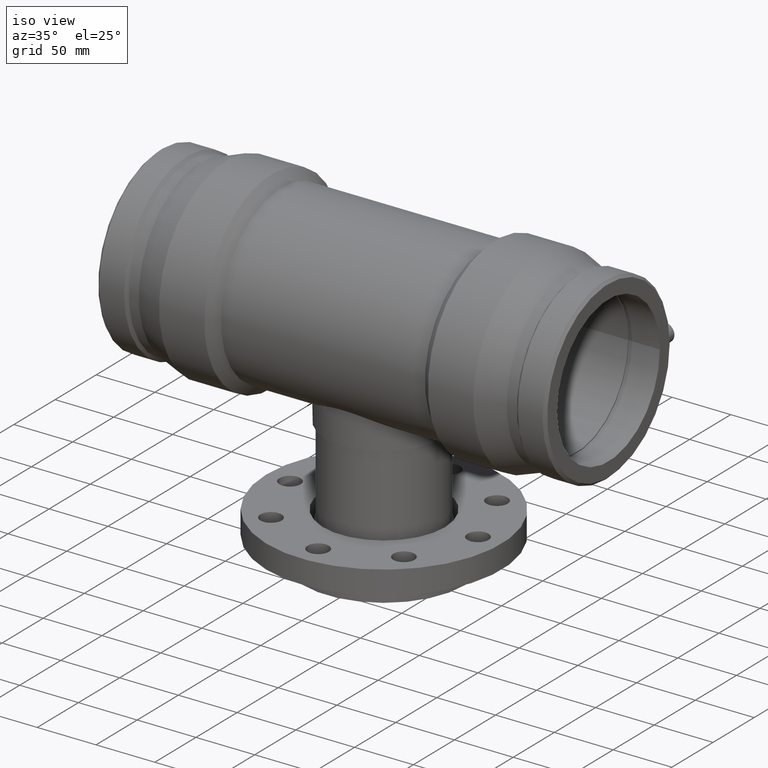
[diagram: clean part render]
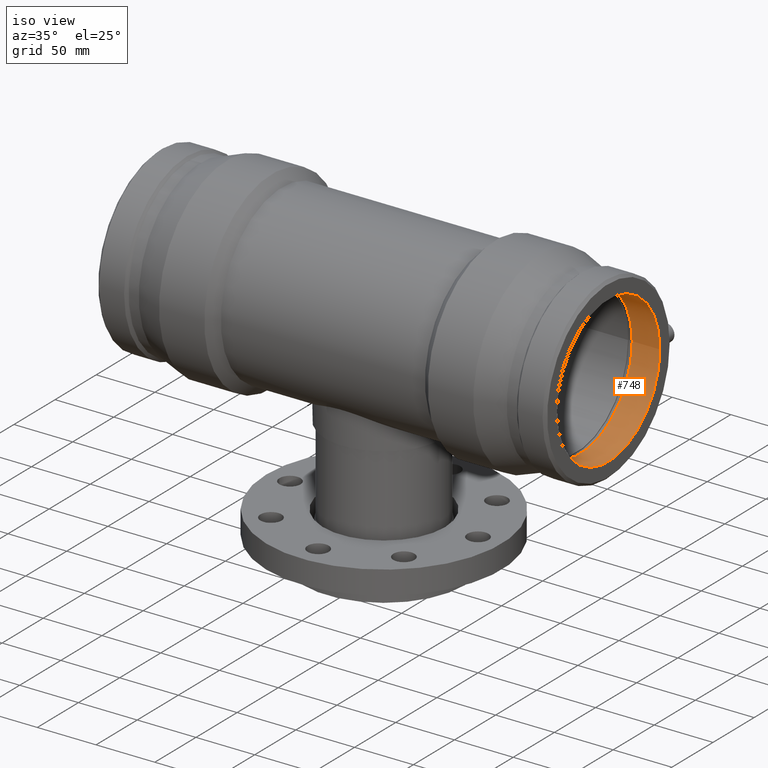
[diagram: same view with one face highlighted and labeled with its STEP entity id]
A machine part, iso view. The second image highlights one B-rep face of the part: STEP entity #748.
In plain terms, the highlighted cylindrical surface (bore or boss wall) has radius 62.5 mm, axis along (1, 0, 0).
Its self-contained STEP definition (entity closure, byte-faithful):
#109=FACE_BOUND('',#390,.T.);
#174=CIRCLE('',#862,62.5);
#175=CIRCLE('',#864,62.5);
#210=CYLINDRICAL_SURFACE('',#863,62.5);
#264=FACE_OUTER_BOUND('',#389,.T.);
#389=EDGE_LOOP('',(#675));
#390=EDGE_LOOP('',(#676));
#477=VERTEX_POINT('',#1701);
#478=VERTEX_POINT('',#1704);
#547=EDGE_CURVE('',#477,#477,#174,.T.);
#548=EDGE_CURVE('',#478,#478,#175,.T.);
#675=ORIENTED_EDGE('',*,*,#547,.T.);
#676=ORIENTED_EDGE('',*,*,#548,.F.);
#748=ADVANCED_FACE('',(#264,#109),#210,.F.);
#862=AXIS2_PLACEMENT_3D('',#1702,#1089,#1090);
#863=AXIS2_PLACEMENT_3D('',#1703,#1091,#1092);
#864=AXIS2_PLACEMENT_3D('',#1705,#1093,#1094);
#1089=DIRECTION('center_axis',(1.,0.,0.));
#1090=DIRECTION('ref_axis',(0.,0.,-1.));
#1091=DIRECTION('center_axis',(1.,0.,0.));
#1092=DIRECTION('ref_axis',(0.,1.,0.));
#1093=DIRECTION('center_axis',(1.,0.,0.));
#1094=DIRECTION('ref_axis',(0.,0.,-1.));
#1701=CARTESIAN_POINT('',(191.,62.5,0.));
#1702=CARTESIAN_POINT('Origin',(191.,0.,0.));
#1703=CARTESIAN_POINT('Origin',(179.250875,0.,0.));
#1704=CARTESIAN_POINT('',(167.50175,62.5,0.));
#1705=CARTESIAN_POINT('Origin',(167.50175,0.,0.));